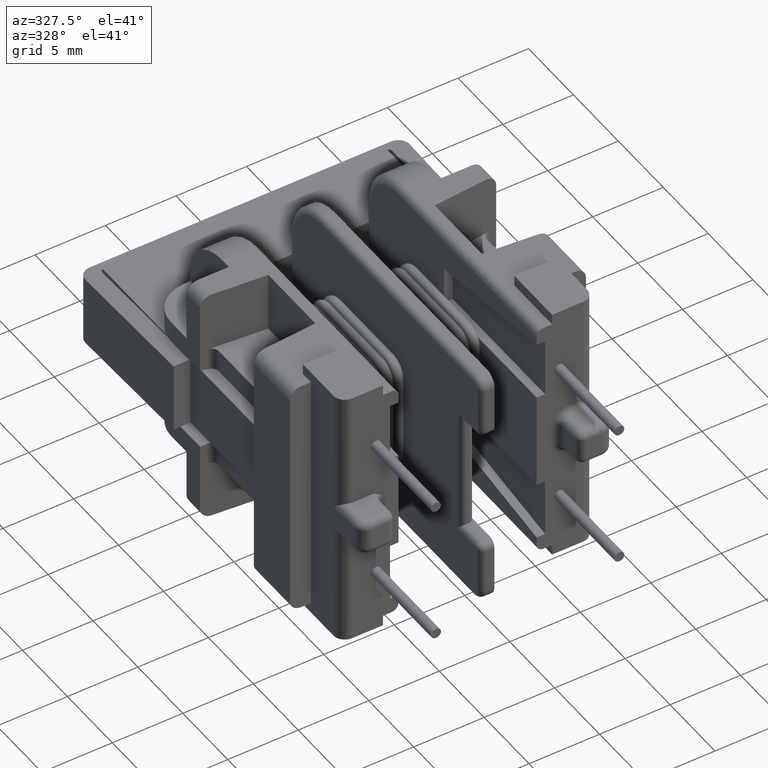
[diagram: clean part render]
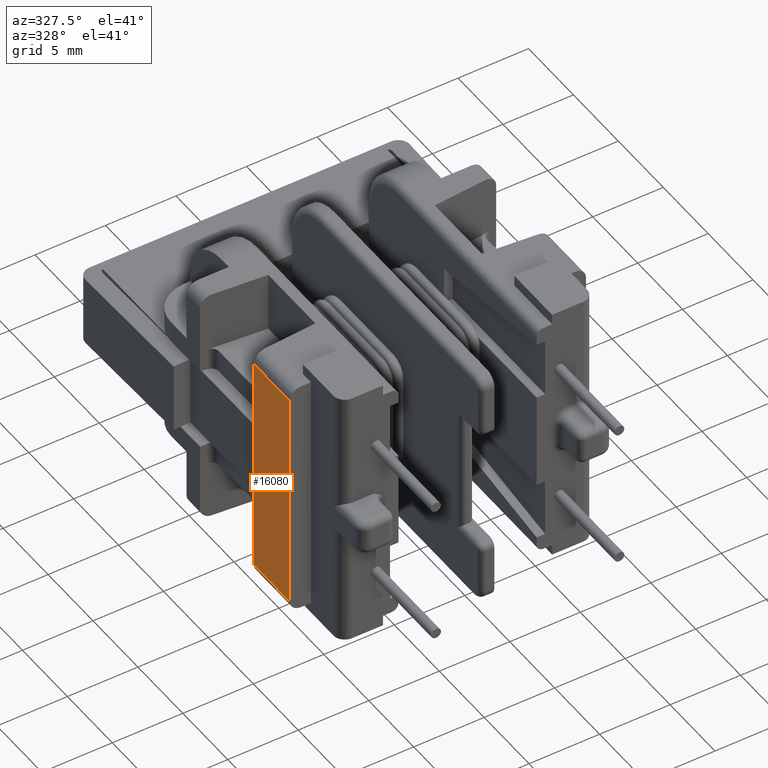
[diagram: same view with one face highlighted and labeled with its STEP entity id]
A machine part, auxiliary view. The second image highlights one B-rep face of the part: STEP entity #16080.
In plain terms, the highlighted planar face has unit normal (1, 0, 0).
Its self-contained STEP definition (entity closure, byte-faithful):
#1218 = CARTESIAN_POINT ( 'NONE',  ( -10.50000000000000000, -7.000000000000000000, 0.0000000000000000000 ) ) ;
#1830 = VECTOR ( 'NONE', #21232, 1000.000000000000000 ) ;
#2219 = ORIENTED_EDGE ( 'NONE', *, *, #10276, .T. ) ;
#3824 = EDGE_CURVE ( 'NONE', #20653, #16712, #8263, .T. ) ;
#4863 = VECTOR ( 'NONE', #16082, 1000.000000000000000 ) ;
#4875 = CARTESIAN_POINT ( 'NONE',  ( -10.50000000000000000, 0.0000000000000000000, -7.950000000000000178 ) ) ;
#5062 = AXIS2_PLACEMENT_3D ( 'NONE', #19344, #21377, #10564 ) ;
#6446 = FACE_OUTER_BOUND ( 'NONE', #19141, .T. ) ;
#6485 = DIRECTION ( 'NONE',  ( 0.0000000000000000000, -1.000000000000000000, 0.0000000000000000000 ) ) ;
#7619 = EDGE_CURVE ( 'NONE', #17865, #12103, #19309, .T. ) ;
#7693 = LINE ( 'NONE', #1218, #1830 ) ;
#8263 = LINE ( 'NONE', #17643, #4863 ) ;
#8743 = CARTESIAN_POINT ( 'NONE',  ( -10.50000000000000000, -7.000000000000000000, -7.950000000000000178 ) ) ;
#9390 = CARTESIAN_POINT ( 'NONE',  ( -10.49999999999999822, -3.000000000000000000, -7.950000000000001954 ) ) ;
#10276 = EDGE_CURVE ( 'NONE', #12103, #20653, #7693, .T. ) ;
#10564 = DIRECTION ( 'NONE',  ( 0.0000000000000000000, 0.0000000000000000000, -1.000000000000000000 ) ) ;
#10784 = DIRECTION ( 'NONE',  ( -0.0000000000000000000, -0.0000000000000000000, -1.000000000000000000 ) ) ;
#12103 = VERTEX_POINT ( 'NONE', #8743 ) ;
#14229 = VECTOR ( 'NONE', #6485, 1000.000000000000000 ) ;
#16020 = ORIENTED_EDGE ( 'NONE', *, *, #7619, .T. ) ;
#16080 = ADVANCED_FACE ( 'NONE', ( #6446 ), #23278, .F. ) ;
#16082 = DIRECTION ( 'NONE',  ( -0.0000000000000000000, 1.000000000000000000, -0.0000000000000000000 ) ) ;
#16712 = VERTEX_POINT ( 'NONE', #18184 ) ;
#17643 = CARTESIAN_POINT ( 'NONE',  ( -10.50000000000000000, -3.000000000000000000, 7.950000000000000178 ) ) ;
#17865 = VERTEX_POINT ( 'NONE', #9390 ) ;
#18184 = CARTESIAN_POINT ( 'NONE',  ( -10.49999999999999822, -3.000000000000000000, 7.950000000000000178 ) ) ;
#18567 = EDGE_CURVE ( 'NONE', #16712, #17865, #19074, .T. ) ;
#19074 = LINE ( 'NONE', #21662, #19633 ) ;
#19141 = EDGE_LOOP ( 'NONE', ( #22782, #16020, #2219, #22147 ) ) ;
#19309 = LINE ( 'NONE', #4875, #14229 ) ;
#19344 = CARTESIAN_POINT ( 'NONE',  ( -10.50000000000000000, 0.0000000000000000000, 0.0000000000000000000 ) ) ;
#19633 = VECTOR ( 'NONE', #10784, 1000.000000000000000 ) ;
#19804 = CARTESIAN_POINT ( 'NONE',  ( -10.50000000000000000, -7.000000000000000000, 7.950000000000000178 ) ) ;
#20653 = VERTEX_POINT ( 'NONE', #19804 ) ;
#21232 = DIRECTION ( 'NONE',  ( 0.0000000000000000000, -0.0000000000000000000, 1.000000000000000000 ) ) ;
#21377 = DIRECTION ( 'NONE',  ( 1.000000000000000000, 0.0000000000000000000, 0.0000000000000000000 ) ) ;
#21662 = CARTESIAN_POINT ( 'NONE',  ( -10.49999999999999822, -3.000000000000000000, 3.000000000000000000 ) ) ;
#22147 = ORIENTED_EDGE ( 'NONE', *, *, #3824, .T. ) ;
#22782 = ORIENTED_EDGE ( 'NONE', *, *, #18567, .T. ) ;
#23278 = PLANE ( 'NONE',  #5062 ) ;